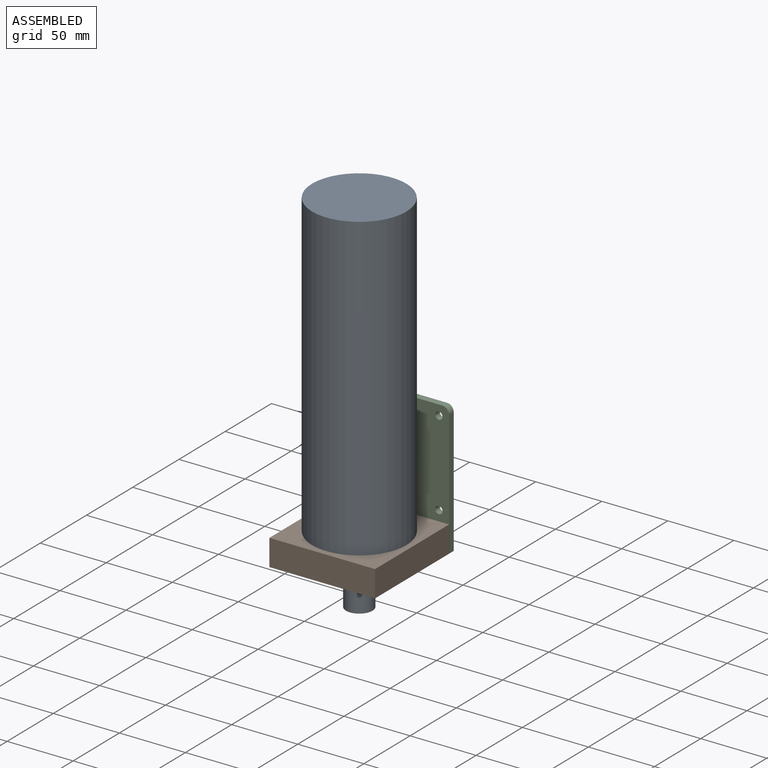
[diagram: assembled view]
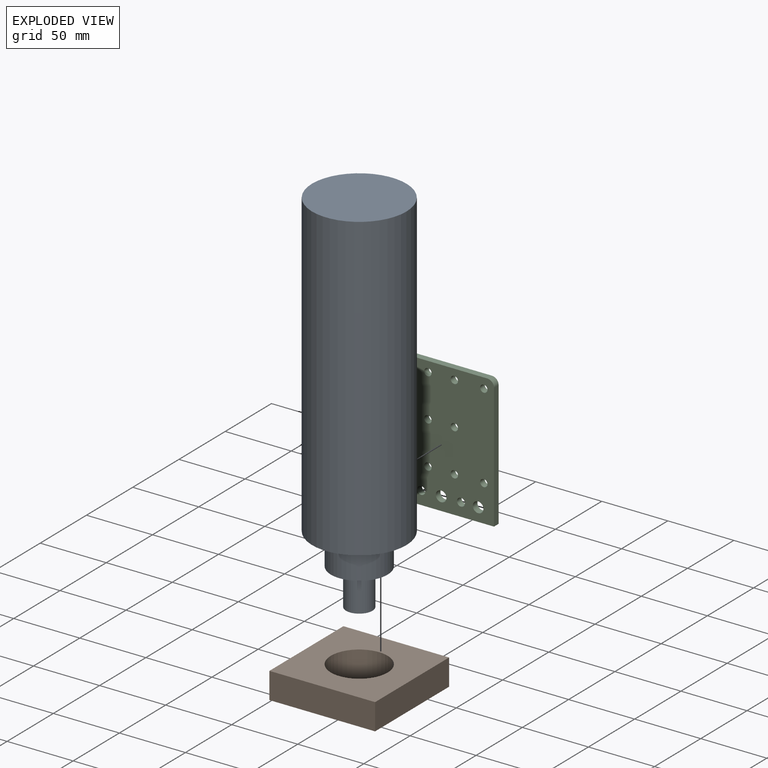
[diagram: exploded view]
GUIDED TOUR — MATED ASSEMBLY (Onshape document 0448ab03a02e4f5b1a58018f, AutoMate assembly 0448ab03a02e4f5b1a58018f_3ffb124f000083fb4dd554a1_7f40be1e2334ce1beca7ed28_default)

This assembly has 3 components, labeled P0..P2 below (a component is one placed occurrence of a part; the same part can appear more than once), held together by 4 mates. A mate is a constraint between two components; its type names the relative motion it leaves free:
  CYLINDRICAL — leaves both rotation about and translation along the listed axis free,
  PLANAR — leaves sliding in the plane through the listed point (normal = the listed direction) and rotation about that normal free.
Axis/direction vectors are unit vectors and 'through' points are millimeter coordinates, both in the assembly's world frame.

MATES
  1. PLANAR "Planar 2": P0 <-> P1, direction (0.000, 0.000, -1.000) through (-5.85, -75.13, -65.25) mm
  2. CYLINDRICAL "Cylindrical 1": P2 <-> P1, axis (0.000, -1.000, 0.000) through (22.15, -35.13, -75.25) mm
  3. PLANAR "Planar 1": P2 <-> P1, direction (0.000, -1.000, 0.000) through (-5.71, -35.13, -34.57) mm
  4. CYLINDRICAL "Cylindrical 3": P0 <-> P1, axis (0.000, 0.000, 1.000) through (-5.85, -75.13, -77.25) mm

ASSEMBLY ORDER
  1. P0 — the base component [order verified]
  2. P1 [order verified]
  3. P2 [order verified]
Order-tag legend:
  [order verified] — this step's position reverses a verified removal order: the component was checked to insert without passing through the ones already placed.

Of the 3 components, 2 carry the full construction recipe — the FeatureScript program that regenerates the part's solid from scratch; the rest are supplied as boundary geometry only.
Each toured component is shown spotlighted twice — in the assembled view, then in the exploded view, where a leader line traces a displaced component back to its assembled socket (saturated green if recipe-attached, orange if geometry-only; every other component desaturated gray) — followed by its recipe or geometry summary and the mates that hold it.
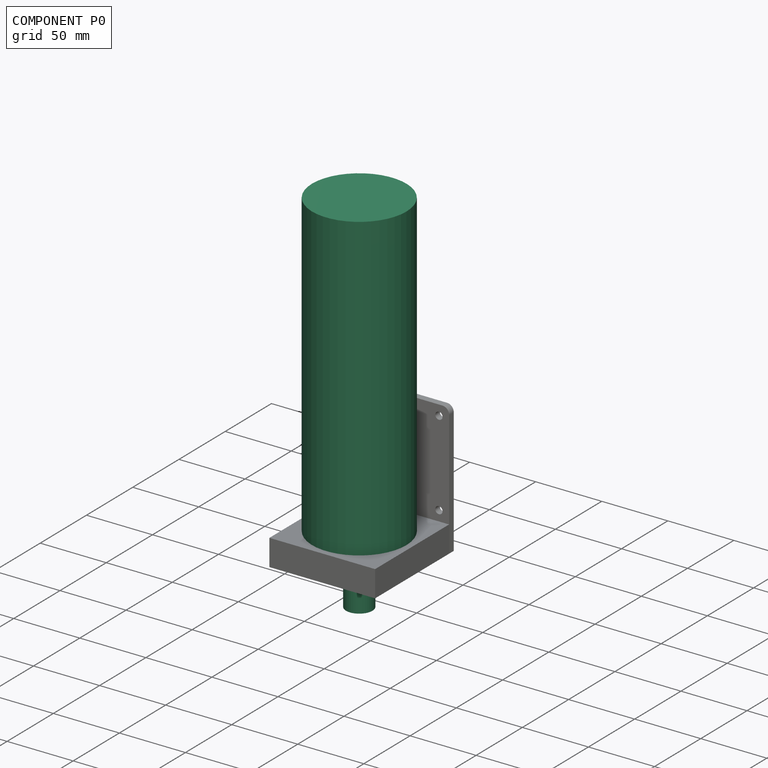
[diagram: component P0 — assembled]
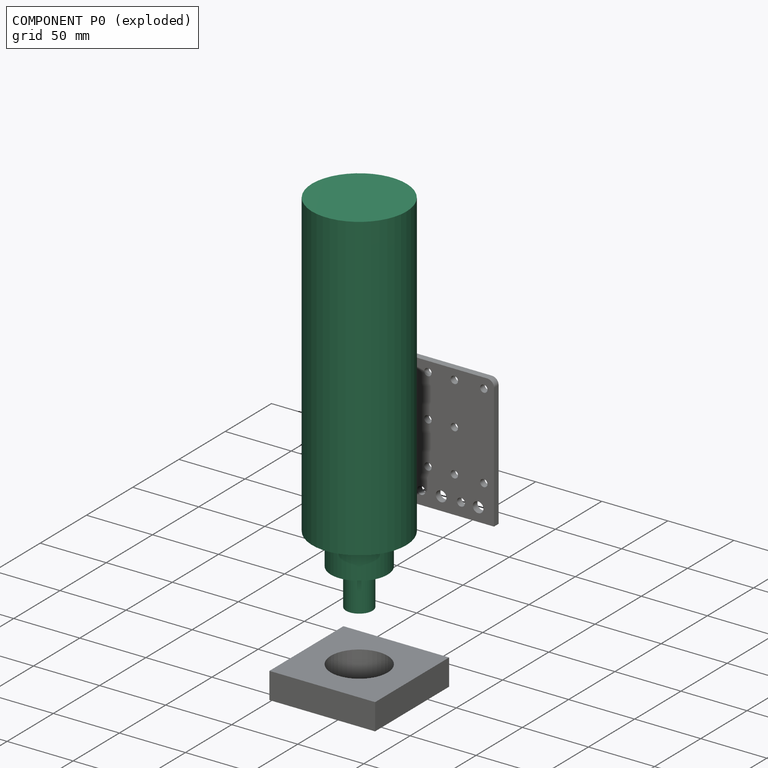
[diagram: component P0 — exploded]
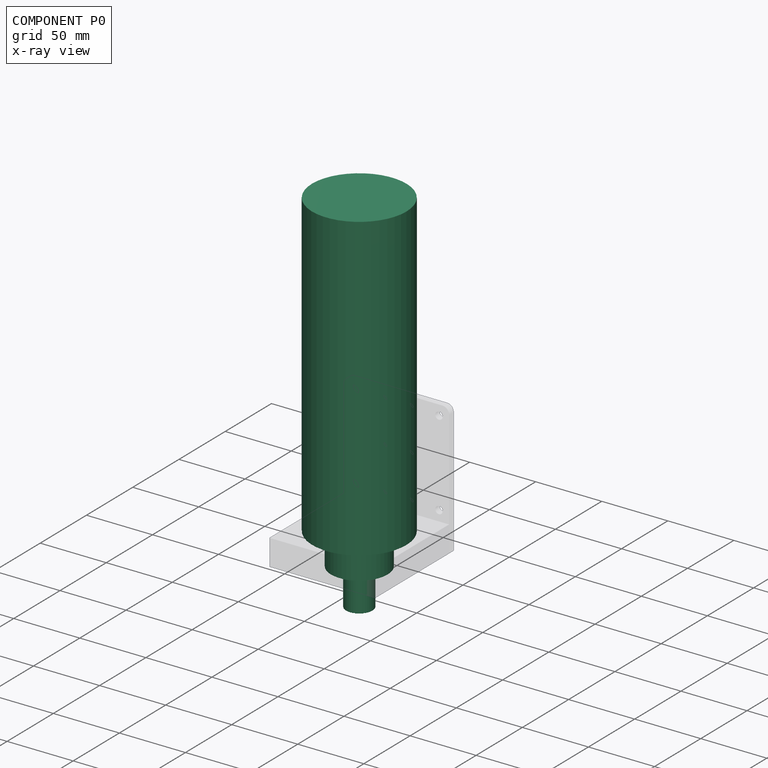
[diagram: component P0 — x-ray view]
COMPONENT P0 — recipe-attached (CADFS 00110492, mesh-verified: the recipe's output STEP matches this component's geometry to below the mesh-comparison resolution (tessellation chordal tolerance ~0.446 mm)).
Held by: PLANAR mate "Planar 2" to P1; CYLINDRICAL mate "Cylindrical 3" to P1.
Construction recipe (FeatureScript — the CAD program that rebuilds this solid; sketch coordinates are in the units given by the * unit suffixes, e.g. mm):

FeatureScript 1511;
import(path : "onshape/std/geometry.fs", version : "1511.0");
import(path : "onshape/std/common.fs", version : "1511.0");
const mm = millimeter;
const VERTEX = EntityType.VERTEX;
const EDGE = EntityType.EDGE;
const FACE = EntityType.FACE;
const BODY = EntityType.BODY;
function v(x, y){return vector(x, y);}
function OD(order){return orderDisambiguation(order);}
function OSD(set){return originalSetDisambiguation(set);}
function TD(topology){return topologyDisambiguation(topology);}
function TDD(query){return trueDependencyDisambiguation(query);}
function sQuery(a, b, c) {return sketchEntityQuery(a, b, c);}

annotation { "Feature Type Name" : "Feature", "Feature Type Description" : "" }
export const myFeature = defineFeature(function(context is Context, id is Id, definition is map)
    precondition{}
    {
        {
            var Q0;
            Q0=qCreatedBy(makeId("Front.planeOp"),FACE);
            var sketch = newSketch(context, id + "F0", { "sketchPlane" : qUnion([Q0])});
            skLineSegment(sketch, "E0.right", {"start": v(71.4, 0) * mm, "end": v(71.4, -228.2) * mm});
            skLineSegment(sketch, "E1.right", {"start": v(57.2, -228.2) * mm, "end": v(57.2, -252.2) * mm});
            skLineSegment(sketch, "E2.right", {"start": v(45.7, -252.2) * mm, "end": v(45.7, -280) * mm});
            skLineSegment(sketch, "E3", {"start": v(35.7, 0) * mm, "end": v(35.7, -280) * mm});
            skLineSegment(sketch, "E4", {"start": v(35.7, 0) * mm, "end": v(71.4, 0) * mm});
            skLineSegment(sketch, "E5", {"start": v(35.7, -280) * mm, "end": v(45.7, -280) * mm});
            skLineSegment(sketch, "E6", {"start": v(57.2, -228.2) * mm, "end": v(71.4, -228.2) * mm});
            skLineSegment(sketch, "E7", {"start": v(45.7, -252.2) * mm, "end": v(57.2, -252.2) * mm});
            skSolve(sketch);
        }
        {
            var Q0;
            Q0=makeQuery(id+"F0.imprint","IMPRINT",FACE,{"disambiguationData":[TD([[makeQuery(id+"F0.imprint","IMPRINT",EDGE,{"derivedFrom":sQuery(id+"F0.wireOp",EDGE,"E0.bottom")}),-1.0]])]});
            var Q1;
            Q1=makeQuery(id+"F0.imprint","IMPRINT",FACE,{"disambiguationData":[TD([[makeQuery(id+"F0.imprint","IMPRINT",EDGE,{"derivedFrom":sQuery(id+"F0.wireOp",EDGE,"E0.right")}),-1.0]])]});
            var Q2;
            Q2=sQuery(id+"F0.wireOp",EDGE,"E3");
            revolve(context, id + "F1", {"entities" : qUnion([Q0, Q1]), "axis" : qUnion([Q2]), "revolveType" : RevolveType.FULL});
        }
    });
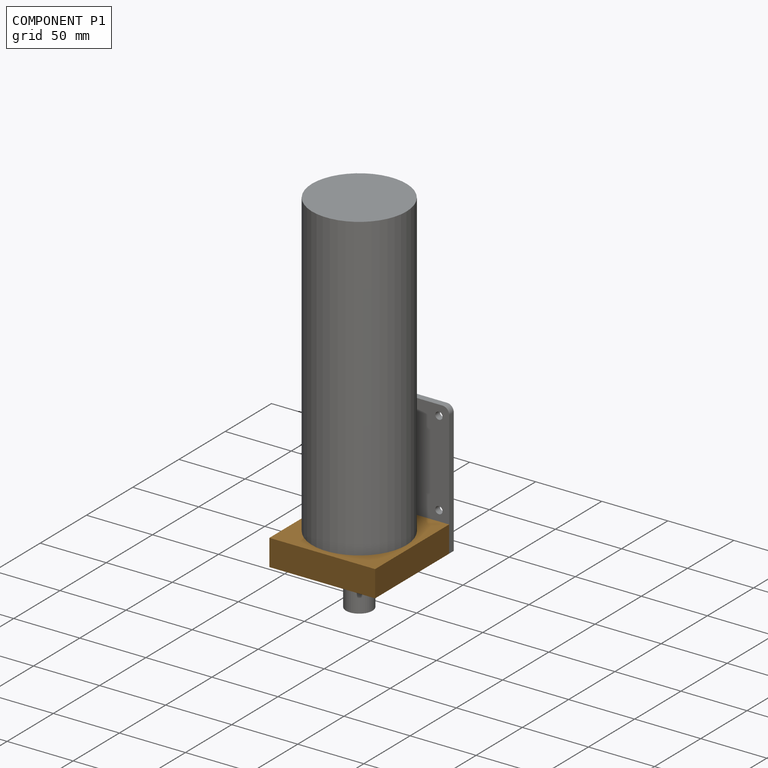
[diagram: component P1 — assembled]
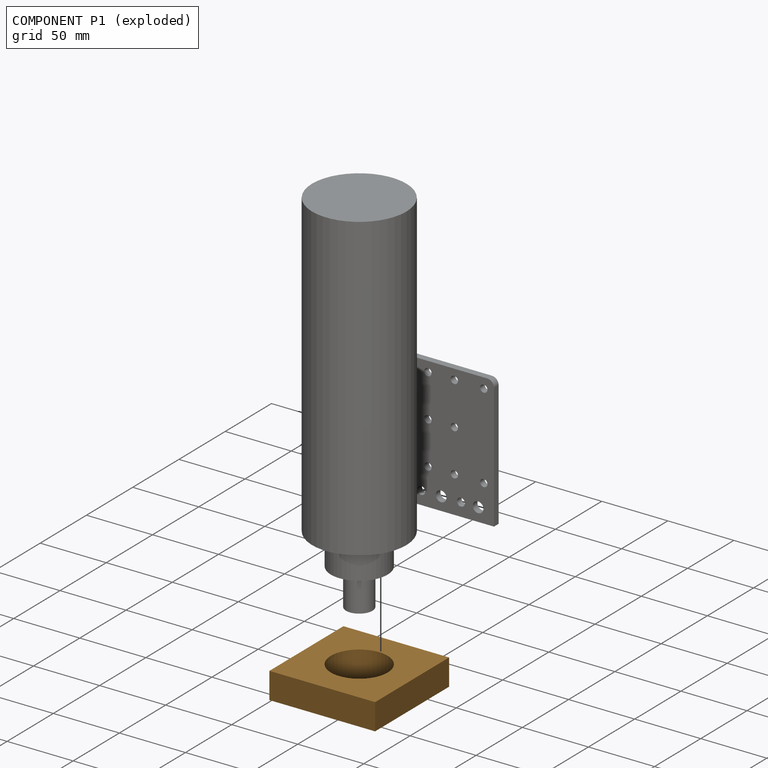
[diagram: component P1 — exploded]
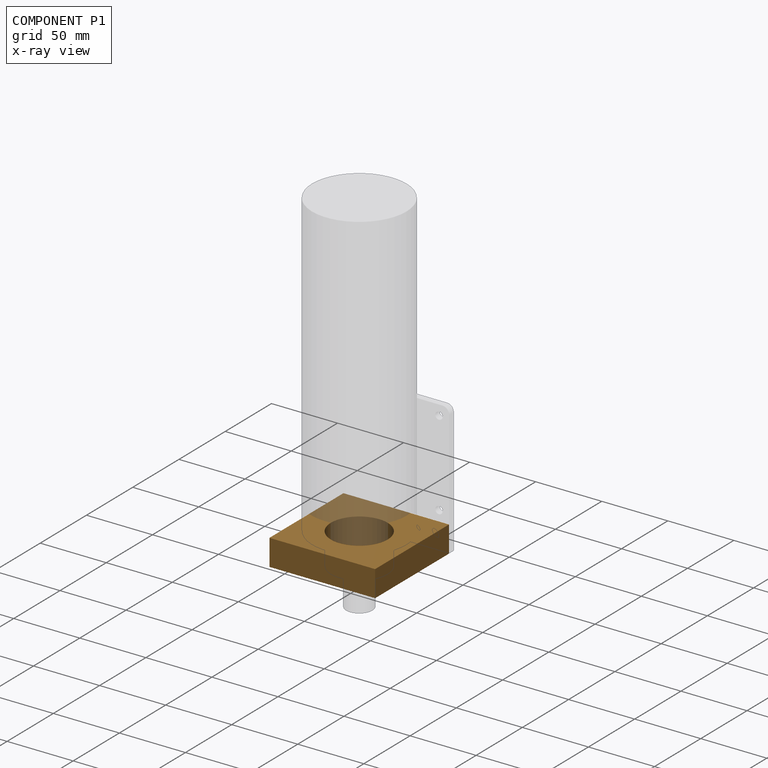
[diagram: component P1 — x-ray view]
COMPONENT P1 — geometry summary (no construction recipe available for this part):
  bounding box: 80.0 x 80.0 x 20.0 mm
  B-rep topology: 1 solid, 13 faces, 48 edges
  volume: 96543 mm^3 (75% of its bounding box)
  symmetry: 2-fold rotationally symmetric about the y axis; mirror-symmetric across its x mid-plane, z mid-plane
Held by: PLANAR mate "Planar 2" to P0; CYLINDRICAL mate "Cylindrical 1" to P2; PLANAR mate "Planar 1" to P2; CYLINDRICAL mate "Cylindrical 3" to P0.
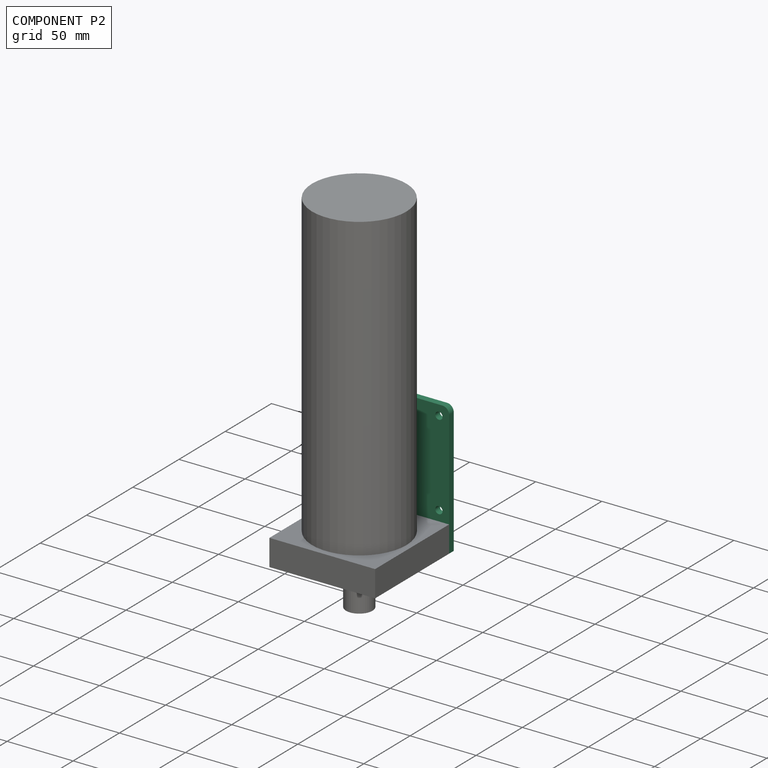
[diagram: component P2 — assembled]
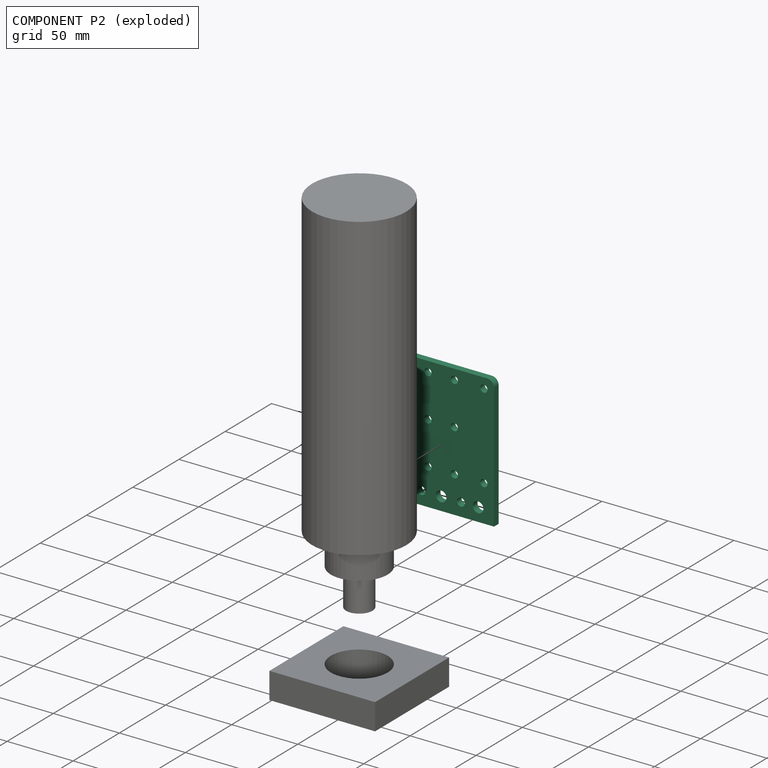
[diagram: component P2 — exploded]
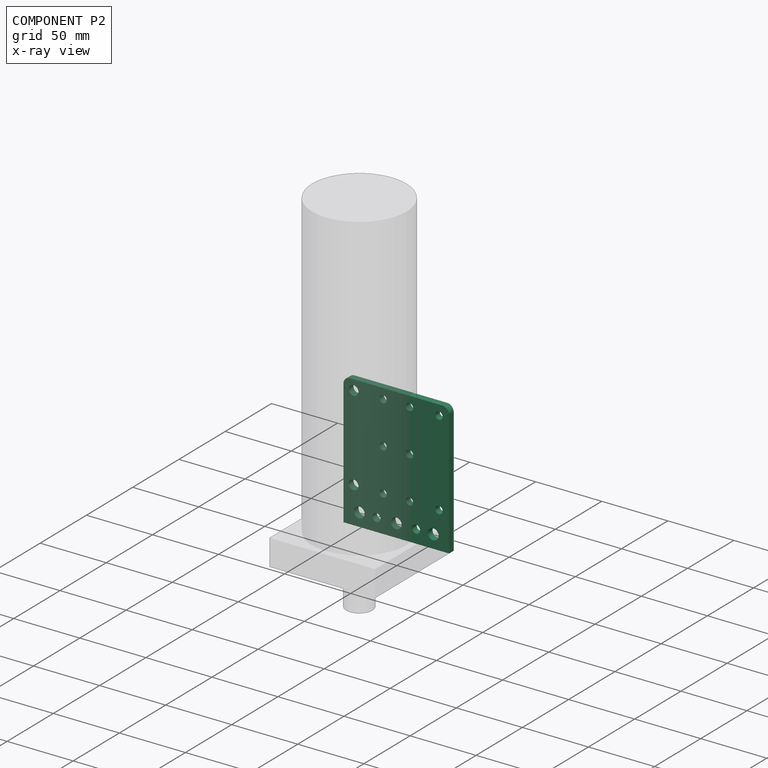
[diagram: component P2 — x-ray view]
COMPONENT P2 — recipe-attached (CADFS 00110490, mesh-verified: the recipe's output STEP matches this component's geometry to below the mesh-comparison resolution (tessellation chordal tolerance ~0.192 mm)).
Held by: CYLINDRICAL mate "Cylindrical 1" to P1; PLANAR mate "Planar 1" to P1.
Construction recipe (FeatureScript — the CAD program that rebuilds this solid; sketch coordinates are in the units given by the * unit suffixes, e.g. mm):

FeatureScript 1511;
import(path : "onshape/std/geometry.fs", version : "1511.0");
import(path : "onshape/std/common.fs", version : "1511.0");
const mm = millimeter;
const VERTEX = EntityType.VERTEX;
const EDGE = EntityType.EDGE;
const FACE = EntityType.FACE;
const BODY = EntityType.BODY;
function v(x, y){return vector(x, y);}
function OD(order){return orderDisambiguation(order);}
function OSD(set){return originalSetDisambiguation(set);}
function TD(topology){return topologyDisambiguation(topology);}
function TDD(query){return trueDependencyDisambiguation(query);}
function sQuery(a, b, c) {return sketchEntityQuery(a, b, c);}

annotation { "Feature Type Name" : "Feature", "Feature Type Description" : "" }
export const myFeature = defineFeature(function(context is Context, id is Id, definition is map)
    precondition{}
    {
        {
            var Q0;
            Q0=qCreatedBy(makeId("Top.planeOp"),FACE);
            var sketch = newSketch(context, id + "F0", { "sketchPlane" : qUnion([Q0])});
            skLineSegment(sketch, "E0.bottom", {"start": v(5, 0) * mm, "end": v(75, 0) * mm});
            skLineSegment(sketch, "E0.top", {"start": v(0, -100) * mm, "end": v(80, -100) * mm});
            skLineSegment(sketch, "E0.left", {"start": v(0, -5) * mm, "end": v(0, -100) * mm});
            skLineSegment(sketch, "E0.right", {"start": v(80, -5) * mm, "end": v(80, -100) * mm});
            skCircle(sketch, "E1", {"center": v(7.7, -7.7) * mm, "radius": 3.57 * mm});
            skCircle(sketch, "E2", {"center": v(72.3, -7.7) * mm, "radius": 2.75 * mm});
            skLineSegment(sketch, "E3", {"start": v(7.7, -7.7) * mm, "end": v(72.3, -7.7) * mm, "construction": true});
            skPoint(sketch, "E4.endSnap0", {"position": v(40, -7.7) * mm});
            skLineSegment(sketch, "E5", {"start": v(40, -7.7) * mm, "end": v(40, 0) * mm});
            skCircle(sketch, "E6", {"center": v(7.7, -72.3) * mm, "radius": 3.57 * mm});
            skCircle(sketch, "E7", {"center": v(72.3, -72.3) * mm, "radius": 2.75 * mm});
            skLineSegment(sketch, "E8", {"start": v(7.7, -72.3) * mm, "end": v(72.3, -72.3) * mm, "construction": true});
            skLineSegment(sketch, "E9", {"start": v(7.7, -7.7) * mm, "end": v(7.7, -72.3) * mm, "construction": true});
            skLineSegment(sketch, "E10", {"start": v(72.3, -7.7) * mm, "end": v(72.3, -72.3) * mm, "construction": true});
            skLineSegment(sketch, "E11", {"start": v(0, -80) * mm, "end": v(80, -80) * mm, "construction": true});
            skLineSegment(sketch, "E12", {"start": v(0, -90) * mm, "end": v(80, -90) * mm, "construction": true});
            skCircle(sketch, "E13", {"center": v(40, -90) * mm, "radius": 4 * mm});
            skCircle(sketch, "E14", {"center": v(68, -90) * mm, "radius": 4 * mm});
            skCircle(sketch, "E15", {"center": v(12, -90) * mm, "radius": 4 * mm});
            skLineSegment(sketch, "E16", {"start": v(40, -90) * mm, "end": v(40, -100) * mm, "construction": true});
            skCircle(sketch, "E17", {"center": v(25, -90) * mm, "radius": 3 * mm});
            skCircle(sketch, "E18", {"center": v(55, -90) * mm, "radius": 3 * mm});
            skLineSegment(sketch, "E19", {"start": v(40, -7.7) * mm, "end": v(40, -72.3) * mm, "construction": true});
            skLineSegment(sketch, "E20", {"start": v(7.7, -40) * mm, "end": v(72.3, -40) * mm, "construction": true});
            skCircle(sketch, "E21", {"center": v(30, -40) * mm, "radius": 2.75 * mm});
            skCircle(sketch, "E22", {"center": v(50, -40) * mm, "radius": 2.75 * mm});
            skCircle(sketch, "E23", {"center": v(30, -72.3) * mm, "radius": 2.75 * mm});
            skCircle(sketch, "E24", {"center": v(50, -72.3) * mm, "radius": 2.75 * mm});
            skLineSegment(sketch, "E25", {"start": v(30, -40) * mm, "end": v(30, -72.3) * mm, "construction": true});
            skLineSegment(sketch, "E26", {"start": v(50, -40) * mm, "end": v(50, -72.3) * mm, "construction": true});
            skLineSegment(sketch, "E27", {"start": v(30, -40) * mm, "end": v(30, -7.7) * mm, "construction": true});
            skLineSegment(sketch, "E28", {"start": v(50, -40) * mm, "end": v(50, -7.7) * mm, "construction": true});
            skCircle(sketch, "E29", {"center": v(30, -7.7) * mm, "radius": 2.75 * mm});
            skCircle(sketch, "E30", {"center": v(50, -7.7) * mm, "radius": 2.75 * mm});
            skPoint(sketch, "E31.visualSharp", {"position": v(0, 0) * mm});
            skArc(sketch, "E31.filletArc", {"start": v(5, 0) * mm, "mid": v(1.46, -1.46) * mm, "end": v(0, -5) * mm});
            skPoint(sketch, "E32.visualSharp", {"position": v(80, 0) * mm});
            skArc(sketch, "E32.filletArc", {"start": v(80, -5) * mm, "mid": v(78.54, -1.46) * mm, "end": v(75, 0) * mm});
            skSolve(sketch);
        }
        {
            var Q0;
            Q0 = qSketchRegion(id + "F0", true);
            extrude(context, id + "F1", {"entities" : qUnion([Q0]), "depth" : 5 * mm});
        }
    });
PROVENANCE & LICENSES
Assembly (occurrences, transforms, mates, per-part STEP geometry): AutoMate dataset, Zenodo record 7776208, CC0.
Construction recipes: CADFS (HuggingFace VladPyatov/CADFS, CC-BY-4.0, layered over the ABC dataset), FeatureScript reconstruction programs keyed by ABC model id.
Join: ABC meta listings map ABC model id -> Onshape documentId; within a shared document, parts are matched by geometric signature (bounding-box dims + volume at 0.1% relative tolerance, exact B-rep face/solid counts).
Verification: 2 of this assembly's 3 components carry a recipe attachment, and every attachment is mesh-verified: the CADFS STEP and the AutoMate member STEP were compared as meshes in their shared local frame (symmetric sampled-point-to-mesh distance); worst across the 2 attachments: below the mesh-comparison resolution (tessellation chordal tolerance ~0.446 mm) on a 298 mm part.
Renders: orthographic iso camera (az 35 / el 25); the floor grid conveys scale (grid pitch printed in each image; no ruler). In the exploded view each component is displaced by its stored offset vector: the offsets alone carry the explosion direction (mate normal/axis signs are not orientation cues and do not encode it), and separation distances are assigned per mate-chain, not proportionally to assembly-order depth.
